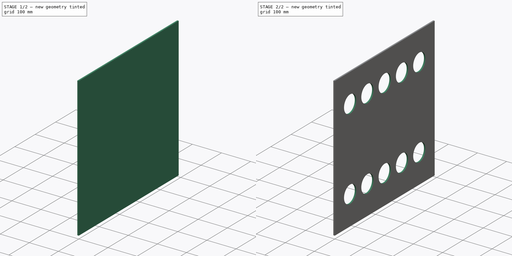
[diagram: build sequence overview — one tinted view per stage of 2, left to right]
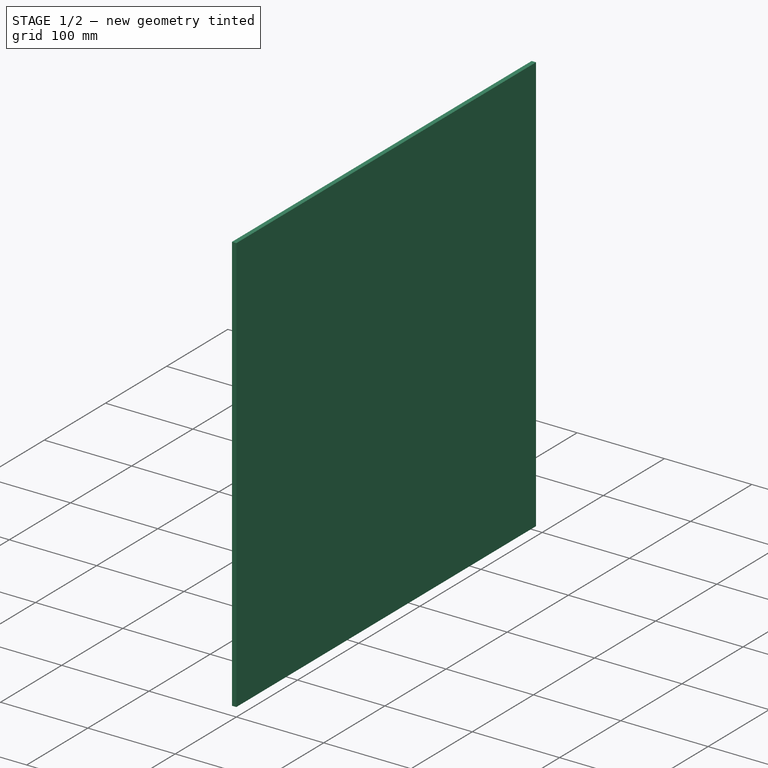
[diagram: stage 1 of 2 — iso view after this stage's code; geometry added in this stage tinted green]
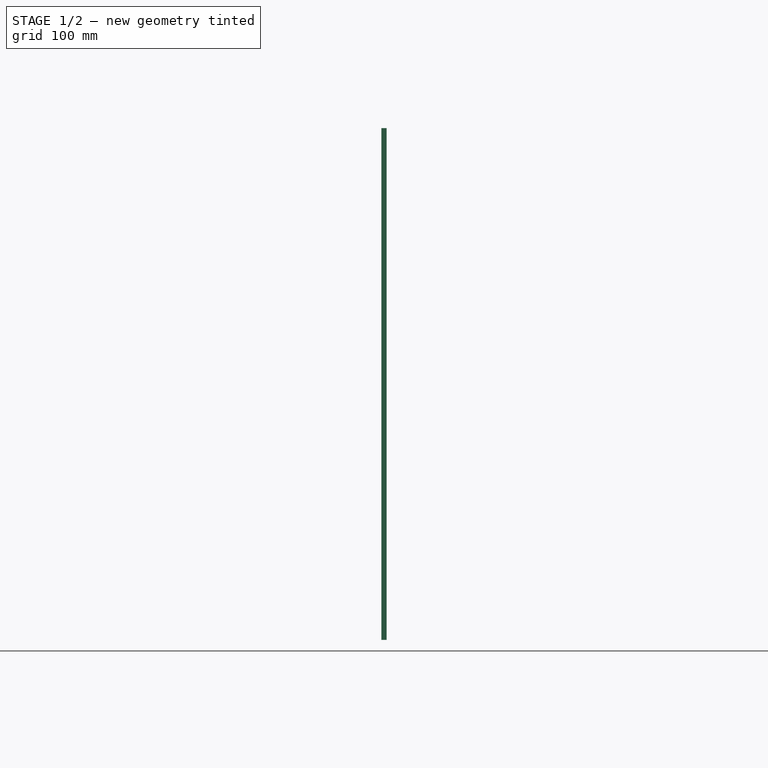
[diagram: stage 1 of 2 — front view after this stage's code; geometry added in this stage tinted green]
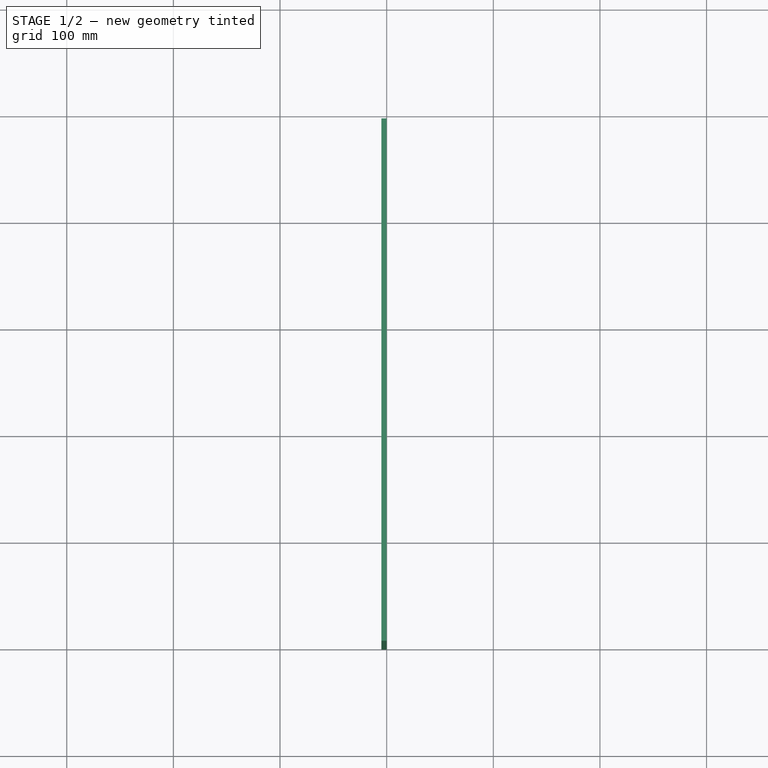
[diagram: stage 1 of 2 — top view after this stage's code; geometry added in this stage tinted green]
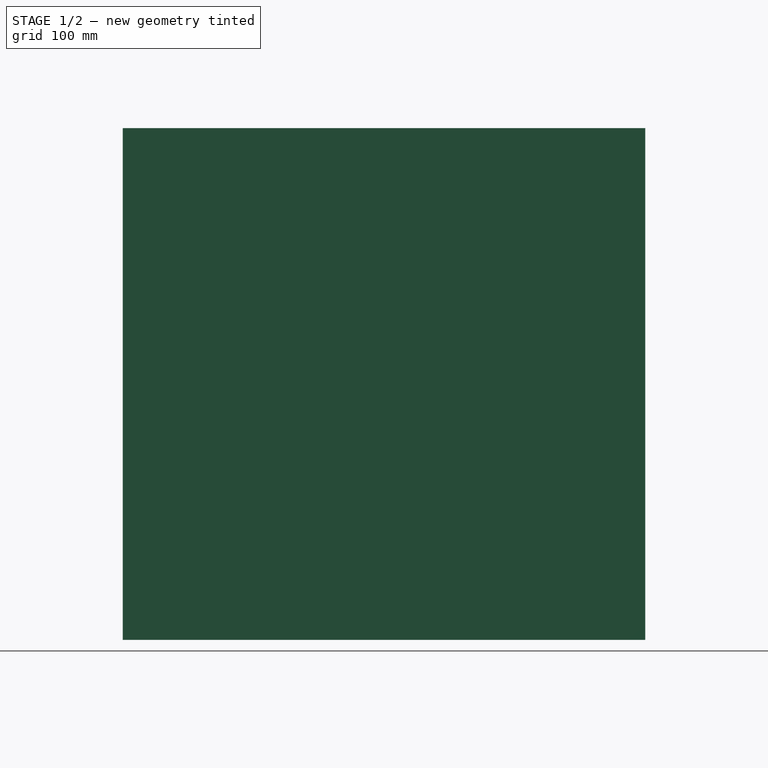
[diagram: stage 1 of 2 — right view after this stage's code; geometry added in this stage tinted green]
FCSTD DOCUMENT  (FreeCAD 0.18R16131 (Git))
Label: 4000_Body_Back_03_YZ
License: All rights reserved
LicenseURL: http://en.wikipedia.org/wiki/All_rights_reserved
objects: Sketcher::SketchObject×3, Spreadsheet::Sheet×1, PartDesign::Pad×1, PartDesign::Pocket×1, PartDesign::Body×1
note: 8 computed .brp shape members not serialized (recipe doc carries the construction recipe); baked Part::Feature solids carry a one-line shape summary decoded from their .brp

FEATURE [Sketcher::SketchObject] Sketch
  MapMode = 4
  Placement = pos=(0,0,0) rot=(0.57735,0.57735,0.57735;2.0944rad)
  Support = -> [XY_Plane]
  expr: Constraints[6] = Spreadsheet.nY
  expr: Constraints[5] = Spreadsheet.nZ
  sketch-geometry (5):
    g0: LineSegment StartX=0 StartY=0 StartZ=0 EndX=0 EndY=480 EndZ=0
    g1: LineSegment StartX=490 StartY=0 StartZ=0 EndX=490 EndY=480 EndZ=0
    g2: LineSegment StartX=490 StartY=480 StartZ=0 EndX=0 EndY=480 EndZ=0
    g3: LineSegment StartX=245 StartY=0 StartZ=0 EndX=0 EndY=0 EndZ=0
    g4: LineSegment StartX=490 StartY=0 StartZ=0 EndX=245 EndY=0 EndZ=0
  constraints (14):
    c: Vertical(g0)
    c: Vertical(g1)
    c: Coincident(g2,g1)
    c: Coincident(g2,g0)
    c: Horizontal(g2)
    c: DistanceY(g1,g1) = 480
    c: DistanceX(g2,g2) = 490
    c: Coincident(g3,g0)
    c: Coincident(g4,g1)
    c: Horizontal(g4)
    c: Equal(g3,g4)
    c: Coincident(g4,g3)
    c: Horizontal(g3)
    c: Coincident(g0,g-1)
FEATURE [Spreadsheet::Sheet] Spreadsheet  label="xls"
  cells = B7=KEYBOARD FRONT; B8=Width; C8=nY; D8(nY)=490; B9=Height; C9=nZ; D9(nZ)=480; E9=F(T); B10=Thickness; C10=nT; D10(nT)=5
FEATURE [PartDesign::Pad] Pad
  Length = 5
  Length2 = 100
  Profile = -> Sketch
  Reversed = true
  Type = 0
  expr: Length = Spreadsheet.nT
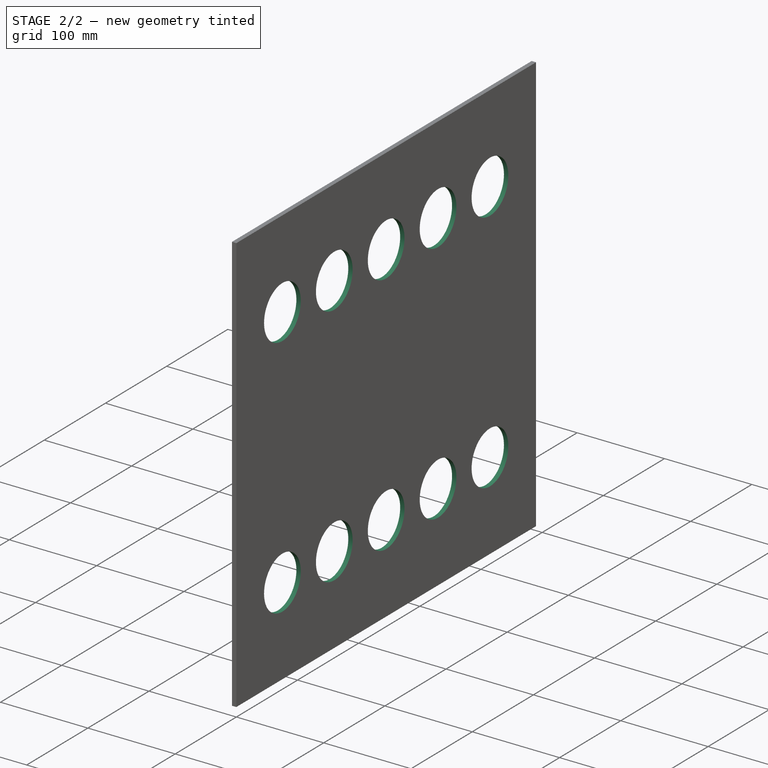
[diagram: stage 2 of 2 — iso view after this stage's code; geometry added in this stage tinted green]
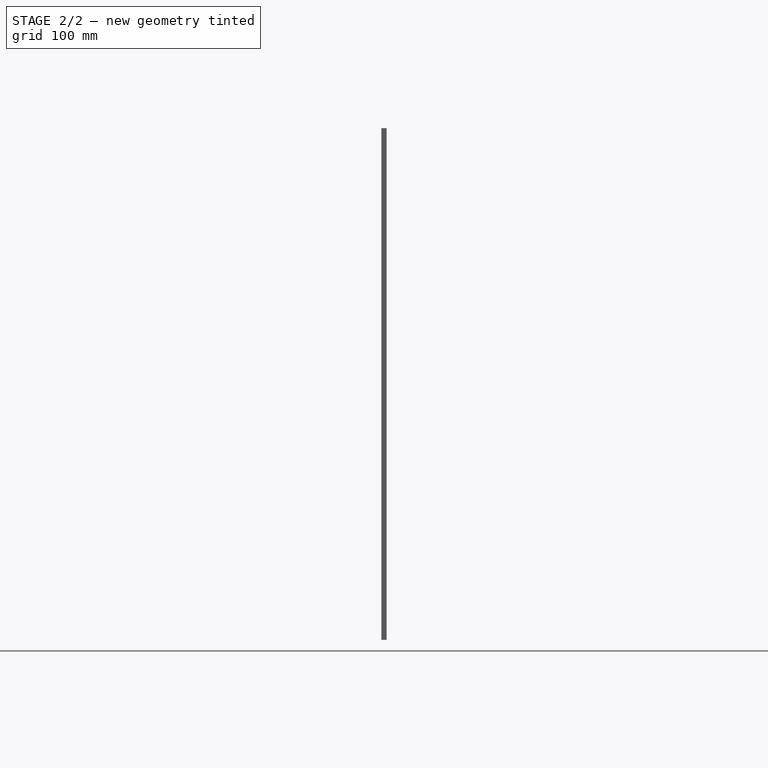
[diagram: stage 2 of 2 — front view after this stage's code; geometry added in this stage tinted green]
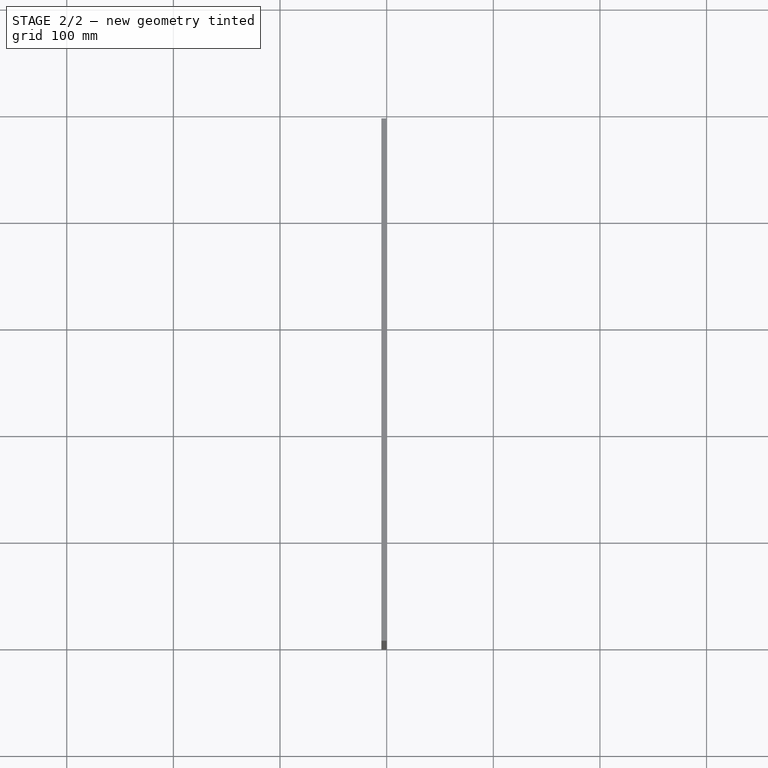
[diagram: stage 2 of 2 — top view after this stage's code; geometry added in this stage tinted green]
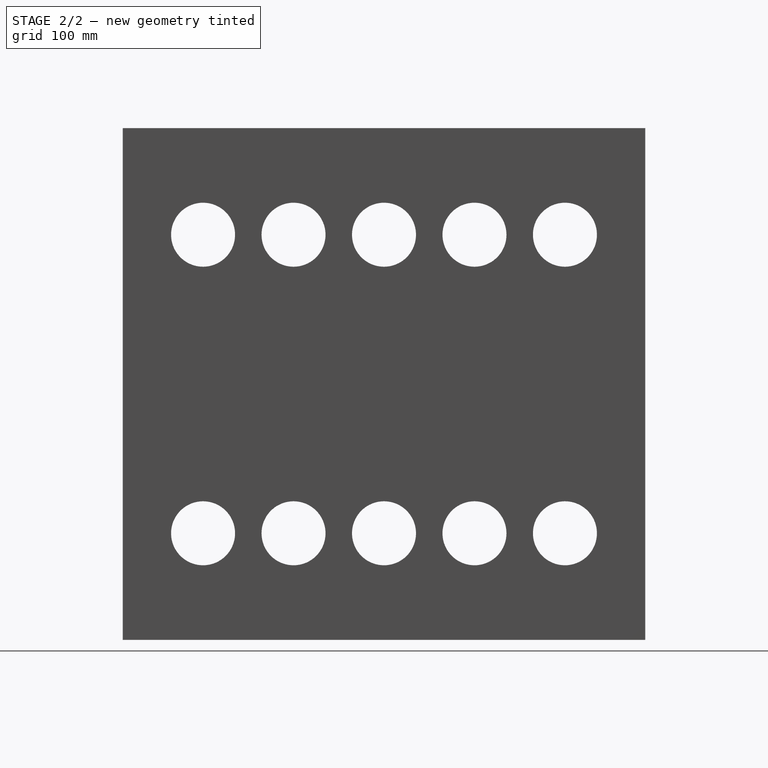
[diagram: stage 2 of 2 — right view after this stage's code; geometry added in this stage tinted green]
FEATURE [Sketcher::SketchObject] Sketch001
  MapMode = 5
  Placement = pos=(0,0,0) rot=(0.57735,0.57735,0.57735;2.0944rad)
  Support = -> [Pad]
FEATURE [Sketcher::SketchObject] Sketch002
  ExternalGeometry = -> [Pad]
  MapMode = 5
  Placement = pos=(0,0,0) rot=(0.57735,0.57735,0.57735;2.0944rad)
  Support = -> [Pad]
  sketch-geometry (23):
    g0: LineSegment [constr] StartX=490 StartY=0 StartZ=0 EndX=245 EndY=0 EndZ=0
    g1: LineSegment [constr] StartX=245 StartY=0 StartZ=0 EndX=0 EndY=0 EndZ=0
    g2: LineSegment [constr] StartX=245 StartY=0 StartZ=0 EndX=245 EndY=100 EndZ=0
    g3: LineSegment [constr] StartX=245 StartY=100 StartZ=0 EndX=245 EndY=380 EndZ=0
    g4: LineSegment [constr] StartX=245 StartY=380 StartZ=0 EndX=245 EndY=480 EndZ=0
    g5: Circle CenterX=245 CenterY=380 CenterZ=0 NormalX=0 NormalY=0 NormalZ=1 AngleXU=0 Radius=30
    g6: Circle CenterX=245 CenterY=100 CenterZ=0 NormalX=0 NormalY=0 NormalZ=1 AngleXU=0 Radius=30
    g7: LineSegment [constr] StartX=245 StartY=100 StartZ=0 EndX=329.844 EndY=100 EndZ=0
    g8: LineSegment [constr] StartX=329.844 StartY=100 StartZ=0 EndX=414.687 EndY=100 EndZ=0
    g9: LineSegment [constr] StartX=245 StartY=100 StartZ=0 EndX=160.156 EndY=100 EndZ=0
    g10: LineSegment [constr] StartX=160.156 StartY=100 StartZ=0 EndX=75.3126 EndY=100 EndZ=0
    g11: LineSegment [constr] StartX=245 StartY=380 StartZ=0 EndX=160.156 EndY=380 EndZ=0
    g12: LineSegment [constr] StartX=160.156 StartY=380 StartZ=0 EndX=75.3126 EndY=380 EndZ=0
    g13: LineSegment [constr] StartX=245 StartY=380 StartZ=0 EndX=329.844 EndY=380 EndZ=0
    g14: LineSegment [constr] StartX=329.844 StartY=380 StartZ=0 EndX=414.687 EndY=380 EndZ=0
    g15: Circle CenterX=75.3126 CenterY=380 CenterZ=0 NormalX=0 NormalY=0 NormalZ=1 AngleXU=0 Radius=30
    g16: Circle CenterX=75.3126 CenterY=100 CenterZ=0 NormalX=0 NormalY=0 NormalZ=1 AngleXU=0 Radius=30
    g17: Circle CenterX=160.156 CenterY=100 CenterZ=0 NormalX=0 NormalY=0 NormalZ=1 AngleXU=0 Radius=30
    g18: Circle CenterX=329.844 CenterY=100 CenterZ=0 NormalX=0 NormalY=0 NormalZ=1 AngleXU=0 Radius=30
    g19: Circle CenterX=414.687 CenterY=100 CenterZ=0 NormalX=0 NormalY=0 NormalZ=1 AngleXU=0 Radius=30
    g20: Circle CenterX=414.687 CenterY=380 CenterZ=0 NormalX=0 NormalY=0 NormalZ=1 AngleXU=0 Radius=30
    g21: Circle CenterX=329.844 CenterY=380 CenterZ=0 NormalX=0 NormalY=0 NormalZ=1 AngleXU=0 Radius=30
    g22: Circle CenterX=160.156 CenterY=380 CenterZ=0 NormalX=0 NormalY=0 NormalZ=1 AngleXU=0 Radius=30
  constraints (57):
    c: Coincident(g0,g-4)
    c: Coincident(g1,g0)
    c: Coincident(g1,g-1)
    c: Parallel(g0,g1)
    c: Equal(g1,g0)
    c: Coincident(g2,g0)
    c: Coincident(g3,g2)
    c: Vertical(g3)
    c: Coincident(g4,g3)
    c: PointOnObject(g4,g-3)
    c: Vertical(g2)
    c: Vertical(g4)
    c: Equal(g4,g2)
    c: DistanceY(g4,g4) = 100
    c: Coincident(g5,g3)
    c: Radius(g5) = 30
    c: Coincident(g6,g2)
    c: Coincident(g7,g6)
    c: Horizontal(g7)
    c: Coincident(g8,g7)
    c: Horizontal(g8)
    c: Coincident(g9,g6)
    c: Horizontal(g9)
    c: Coincident(g10,g9)
    c: Horizontal(g10)
    c: Coincident(g11,g5)
    c: Horizontal(g11)
    c: Coincident(g12,g11)
    c: Horizontal(g12)
    c: Coincident(g13,g5)
    c: Coincident(g14,g13)
    c: Horizontal(g14)
    c: Horizontal(g13)
    c: Equal(g10,g9)
    c: Equal(g7,g9)
    c: Equal(g7,g8)
    c: Equal(g10,g12)
    c: Equal(g12,g11)
    c: Equal(g11,g13)
    c: Equal(g13,g14)
    c: Coincident(g15,g12)
    c: Coincident(g16,g10)
    c: Coincident(g17,g9)
    c: Coincident(g18,g7)
    c: Coincident(g19,g8)
    c: Coincident(g20,g14)
    c: Coincident(g21,g13)
    c: Coincident(g22,g11)
    c: Equal(g15,g22)
    c: Equal(g22,g5)
    c: Equal(g21,g5)
    c: Equal(g21,g20)
    c: Equal(g20,g19)
    c: Equal(g19,g18)
    c: Equal(g18,g6)
    c: Equal(g6,g17)
    c: Equal(g17,g16)
FEATURE [PartDesign::Pocket] Pocket
  BaseFeature = -> Pad
  Length = 5
  Length2 = 100
  Profile = -> Sketch002
  Type = 1
FEATURE [PartDesign::Body] Body
  Group = -> [Sketch,Pad,Sketch001,Sketch002,Pocket]
  Origin = -> Origin
  Tip = -> Pocket
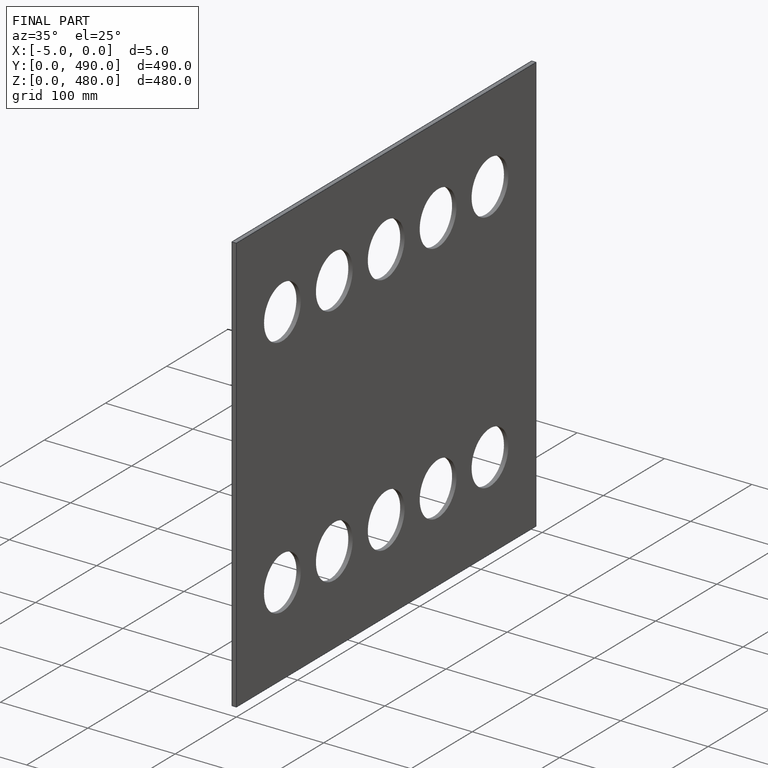
[diagram: finished part — iso view with bounding-box wireframe]
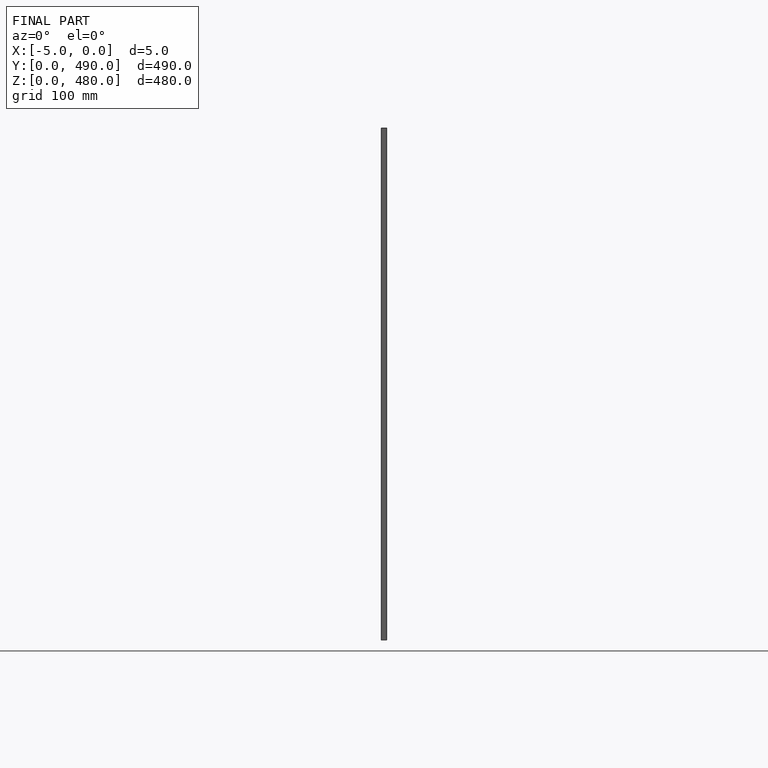
[diagram: finished part — front view with bounding-box wireframe]
